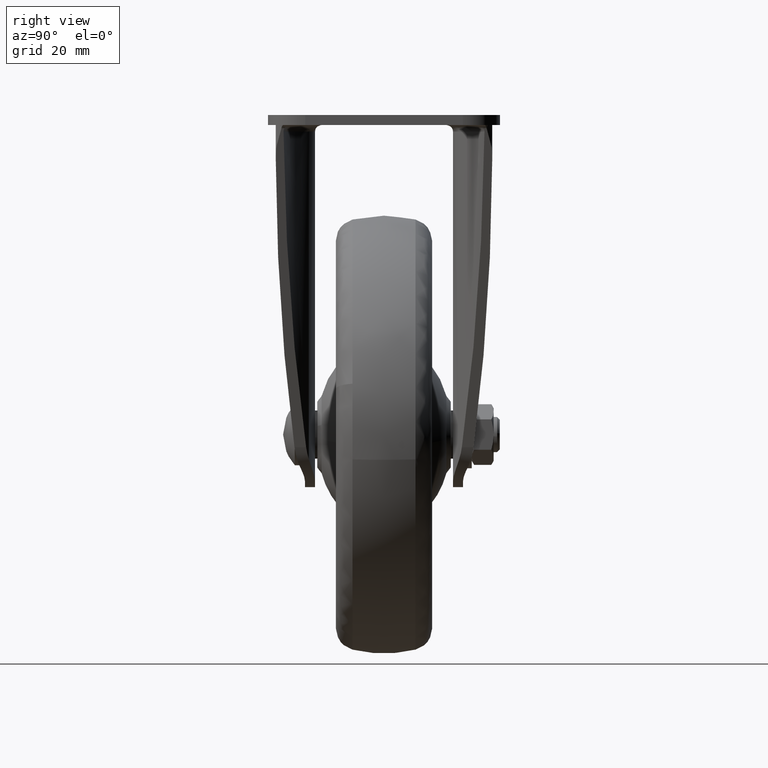
[diagram: clean part render]
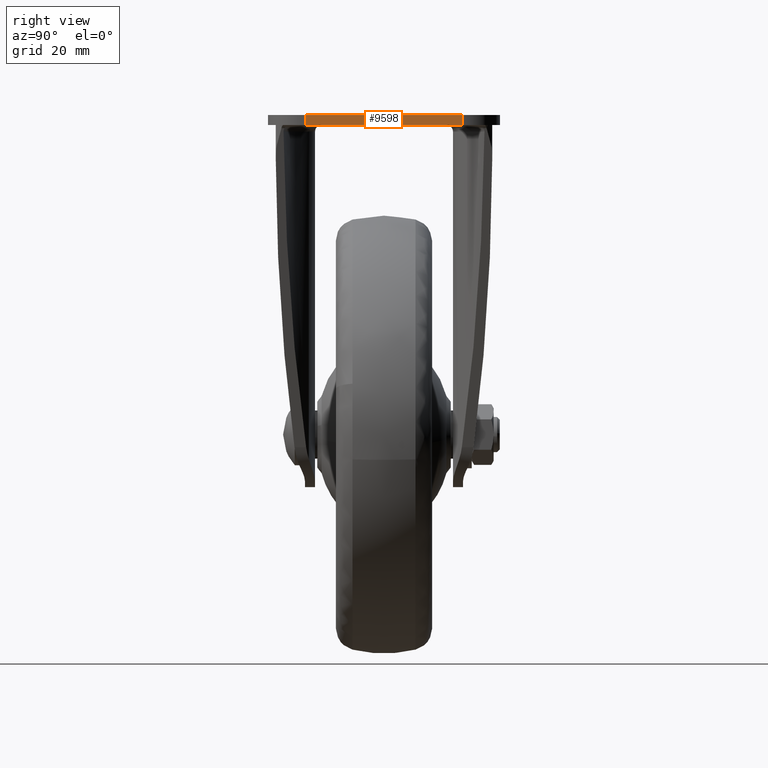
[diagram: same view with one face highlighted and labeled with its STEP entity id]
A machine part, right view. The second image highlights one B-rep face of the part: STEP entity #9598.
In plain terms, the highlighted face is a freeform B-spline surface patch.
Its self-contained STEP definition (entity closure, byte-faithful):
#8540=CARTESIAN_POINT('',(48.499999792275503,18.0,-2.299999999999860));
#8541=VERTEX_POINT('',#8540);
#8557=CARTESIAN_POINT('',(48.500000000000000,-18.0,-2.299999999999860));
#8558=VERTEX_POINT('',#8557);
#8559=CARTESIAN_POINT('',(48.499999792275503,18.0,-2.299999999999860));
#8560=CARTESIAN_POINT('',(48.500000000000000,-18.0,-2.299999999999860));
#8561=QUASI_UNIFORM_CURVE('',1,(#8559,#8560),.UNSPECIFIED.,.F.,.U.);
#8562=EDGE_CURVE('',#8541,#8558,#8561,.T.);
#9071=CARTESIAN_POINT('',(48.500000000000000,-18.0,0.0));
#9072=VERTEX_POINT('',#9071);
#9088=CARTESIAN_POINT('',(48.499999792275503,18.0,0.0));
#9089=VERTEX_POINT('',#9088);
#9090=CARTESIAN_POINT('',(48.499999792275503,18.0,0.0));
#9091=CARTESIAN_POINT('',(48.500000000000000,-18.0,0.0));
#9092=QUASI_UNIFORM_CURVE('',1,(#9090,#9091),.UNSPECIFIED.,.F.,.U.);
#9093=EDGE_CURVE('',#9089,#9072,#9092,.T.);
#9575=CARTESIAN_POINT('',(48.499999792275503,18.0,-2.299999999999860));
#9576=CARTESIAN_POINT('',(48.499999792275503,18.0,0.0));
#9577=QUASI_UNIFORM_CURVE('',1,(#9575,#9576),.UNSPECIFIED.,.F.,.U.);
#9578=EDGE_CURVE('',#8541,#9089,#9577,.T.);
#9583=CARTESIAN_POINT('',(48.500000000000000,-19.798199930225010,-2.414884952360498));
#9584=CARTESIAN_POINT('',(48.500000000000000,-19.798199930225010,0.114885055178650));
#9585=CARTESIAN_POINT('',(48.500000000000000,19.798200895820258,-2.414884952360498));
#9586=CARTESIAN_POINT('',(48.500000000000000,19.798200895820258,0.114885055178650));
#9587=B_SPLINE_SURFACE_WITH_KNOTS('',1,1,((#9583,#9585),(#9584,#9586)),.UNSPECIFIED.,.F.,.F.,.U.,(2,2),(2,2),(0.0,2.529770007539149),(0.0,39.596400826045269),.UNSPECIFIED.);
#9588=ORIENTED_EDGE('',*,*,#8562,.F.);
#9589=ORIENTED_EDGE('',*,*,#9578,.T.);
#9590=ORIENTED_EDGE('',*,*,#9093,.T.);
#9591=CARTESIAN_POINT('',(48.500000000000000,-18.0,-2.299999999999860));
#9592=CARTESIAN_POINT('',(48.500000000000000,-18.0,0.0));
#9593=QUASI_UNIFORM_CURVE('',1,(#9591,#9592),.UNSPECIFIED.,.F.,.U.);
#9594=EDGE_CURVE('',#8558,#9072,#9593,.T.);
#9595=ORIENTED_EDGE('',*,*,#9594,.F.);
#9596=EDGE_LOOP('',(#9588,#9589,#9590,#9595));
#9597=FACE_OUTER_BOUND('',#9596,.T.);
#9598=ADVANCED_FACE('',(#9597),#9587,.F.);